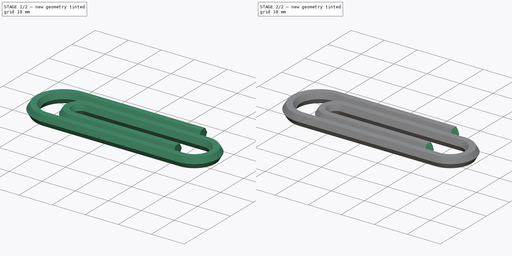
[diagram: build sequence overview — one tinted view per stage of 2, left to right]
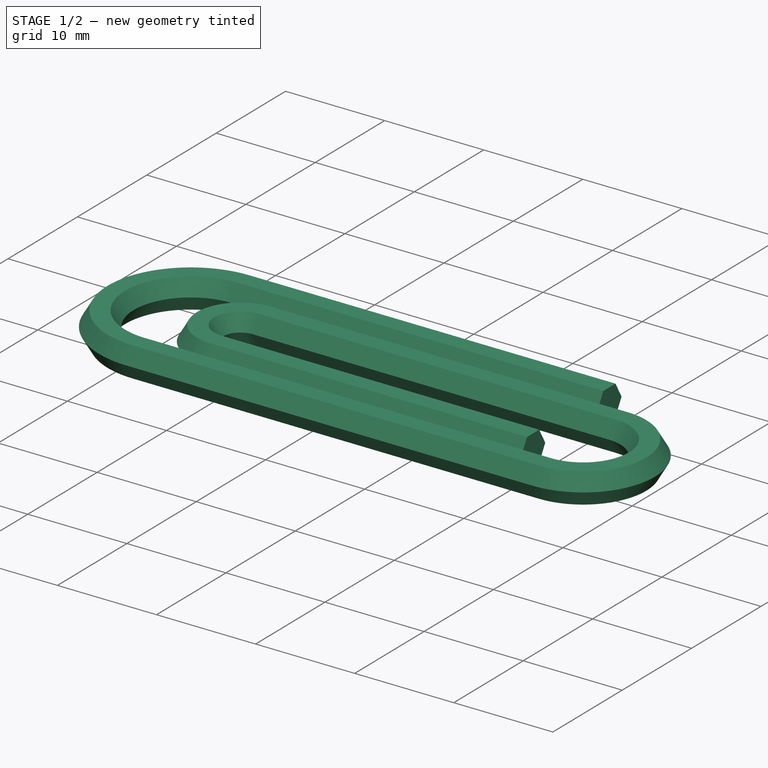
[diagram: stage 1 of 2 — iso view after this stage's code; geometry added in this stage tinted green]
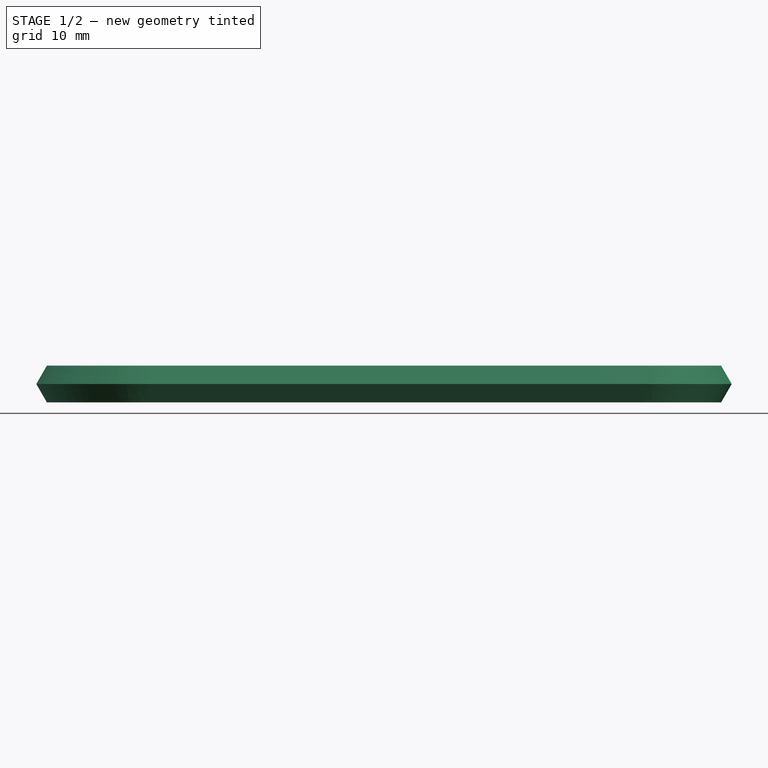
[diagram: stage 1 of 2 — front view after this stage's code; geometry added in this stage tinted green]
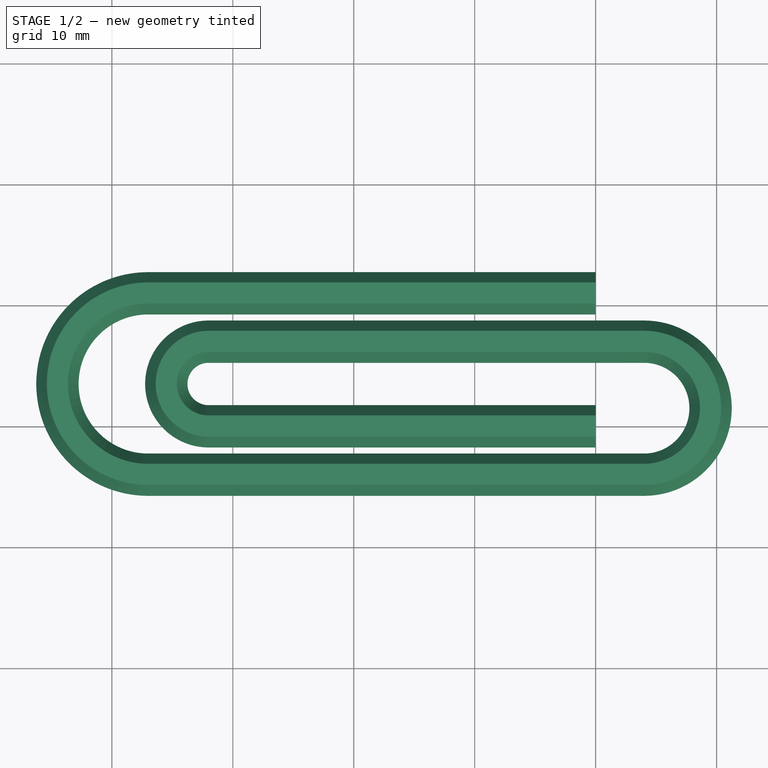
[diagram: stage 1 of 2 — top view after this stage's code; geometry added in this stage tinted green]
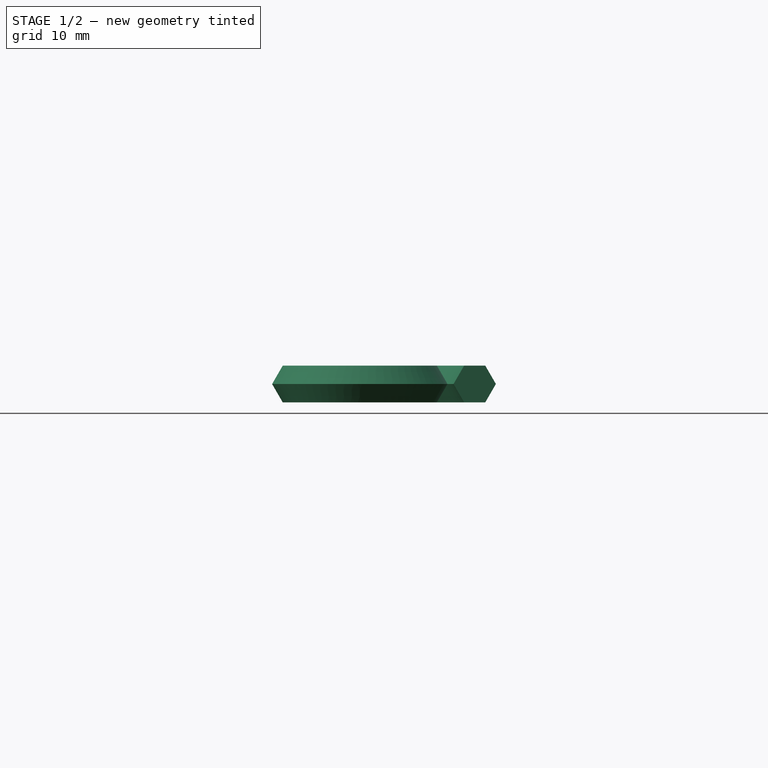
[diagram: stage 1 of 2 — right view after this stage's code; geometry added in this stage tinted green]
FCSTD DOCUMENT  (FreeCAD 0.15R4671 (Git))
Label: paper_clip
License: All rights reserved
LicenseURL: http://en.wikipedia.org/wiki/All_rights_reserved
objects: Sketcher::SketchObject×2, Part::Sweep×1, PartDesign::Chamfer×1
note: 4 computed .brp shape members not serialized (recipe doc carries the construction recipe); baked Part::Feature solids carry a one-line shape summary decoded from their .brp

FEATURE [Sketcher::SketchObject] Sketch
  sketch-geometry (8):
    g0: LineSegment StartX=0 StartY=0 StartZ=0 EndX=-32 EndY=0 EndZ=0
    g1: ArcOfCircle CenterX=-32 CenterY=3.5 CenterZ=0 NormalX=0 NormalY=0 NormalZ=1 Radius=3.5 StartAngle=1.5708 EndAngle=4.71239
    g2: LineSegment StartX=-32 StartY=7 StartZ=0 EndX=4 EndY=7 EndZ=0
    g3: ArcOfCircle CenterX=4 CenterY=1.5 CenterZ=0 NormalX=0 NormalY=0 NormalZ=1 Radius=5.5 StartAngle=4.71239 EndAngle=7.85398
    g4: LineSegment StartX=4 StartY=-4 StartZ=0 EndX=-37 EndY=-4 EndZ=0
    g5: ArcOfCircle CenterX=-37 CenterY=3.5 CenterZ=0 NormalX=0 NormalY=0 NormalZ=1 Radius=7.5 StartAngle=1.5708 EndAngle=4.71239
    g6: LineSegment StartX=-37 StartY=11 StartZ=0 EndX=0 EndY=11 EndZ=0
    g7: LineSegment [constr] StartX=0 StartY=11 StartZ=0 EndX=0 EndY=0 EndZ=0
  constraints (20):
    c: Horizontal(g0)
    c: Tangent(g0,g1) = 1.5708
    c: Tangent(g1,g2) = 1.5708
    c: Tangent(g2,g3) = 1.5708
    c: Tangent(g3,g4) = 1.5708
    c: Tangent(g4,g5) = 1.5708
    c: Tangent(g5,g6) = 1.5708
    c: Parallel(g0,g2)
    c: Parallel(g4,g6)
    c: Parallel(g6,g0)
    c: Coincident(g0,g-1)
    c: Distance(g0) = 32
    c: Distance(g2) = 36
    c: Radius(g1) = 3.5
    c: Radius(g3) = 5.5
    c: Radius(g5) = 7.5
    c: Distance(g4) = 41
    c: Coincident(g7,g6)
    c: Coincident(g7,g-1)
    c: Vertical(g7)
FEATURE [Sketcher::SketchObject] Sketch001
  Placement = pos=(0,0,0) rot=(0.57735,0.57735,0.57735;2.0944rad)
  sketch-geometry (7):
    g0: LineSegment StartX=0.875 StartY=-1.51554 StartZ=0 EndX=1.75 EndY=1e-12 EndZ=0
    g1: LineSegment StartX=1.75 StartY=1e-12 StartZ=0 EndX=0.875 EndY=1.51554 EndZ=0
    g2: LineSegment StartX=0.875 StartY=1.51554 StartZ=0 EndX=-0.875 EndY=1.51554 EndZ=0
    g3: LineSegment StartX=-0.875 StartY=1.51554 StartZ=0 EndX=-1.75 EndY=3e-12 EndZ=0
    g4: LineSegment StartX=-1.75 StartY=3e-12 StartZ=0 EndX=-0.875 EndY=-1.51554 EndZ=0
    g5: LineSegment StartX=-0.875 StartY=-1.51554 StartZ=0 EndX=0.875 EndY=-1.51554 EndZ=0
    g6: Circle [constr] CenterX=0 CenterY=0 CenterZ=0 NormalX=0 NormalY=0 NormalZ=1 Radius=1.75
  constraints (17):
    c: Coincident(g0,g1)
    c: Coincident(g1,g2)
    c: Coincident(g2,g3)
    c: Coincident(g3,g4)
    c: Coincident(g4,g5)
    c: Coincident(g5,g0)
    c: Equal(g0, g1-g5) x5
    c: PointOnObject(g0,g6)
    c: PointOnObject(g1,g6)
    c: PointOnObject(g2,g6)
    c: PointOnObject(g3,g6)
    c: PointOnObject(g4,g6)
    c: PointOnObject(g5,g6)
    c: Coincident(g3,g-1)
    c: Horizontal(g5)
    c: Radius(g6) = 1.75
    c: Coincident(g6,g-1)
FEATURE [Part::Sweep] Sweep
  Frenet = false
  Sections = -> [Sketch001]
  Solid = true
  Spine = -> Sketch [Edge2,Edge1,Edge3,Edge4,Edge5,Edge6,Edge7]
  Transition = 1
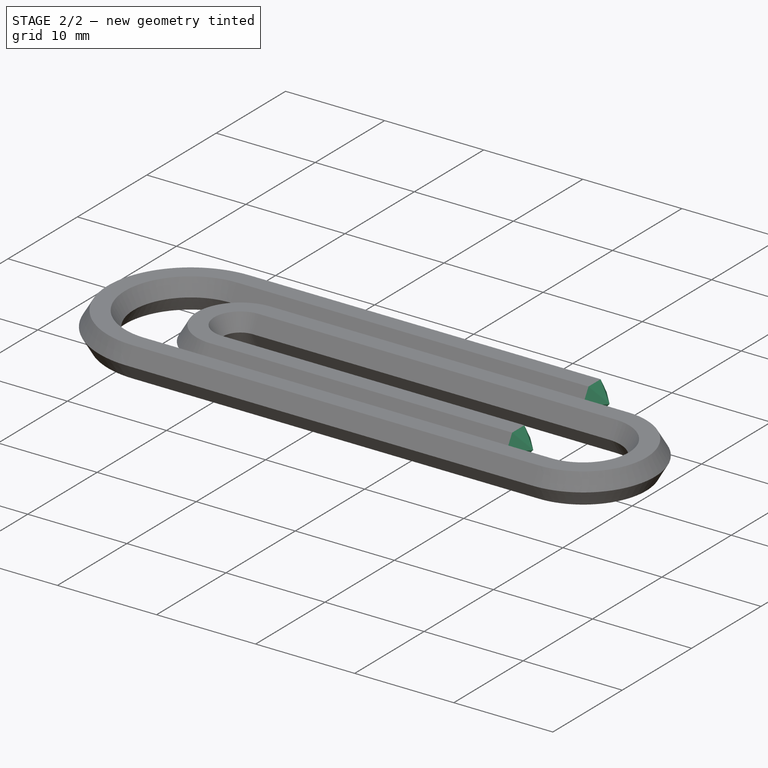
[diagram: stage 2 of 2 — iso view after this stage's code; geometry added in this stage tinted green]
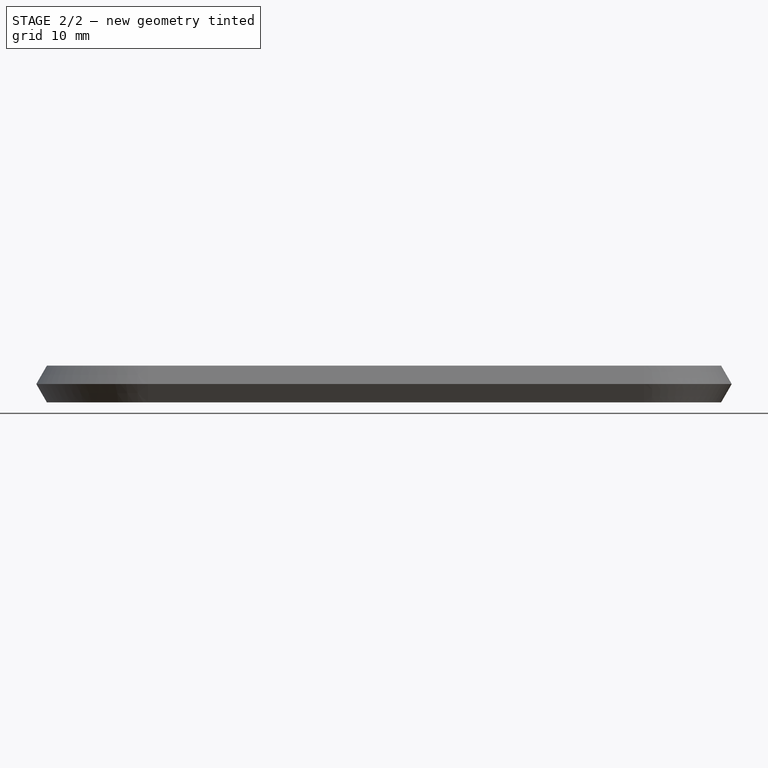
[diagram: stage 2 of 2 — front view after this stage's code; geometry added in this stage tinted green]
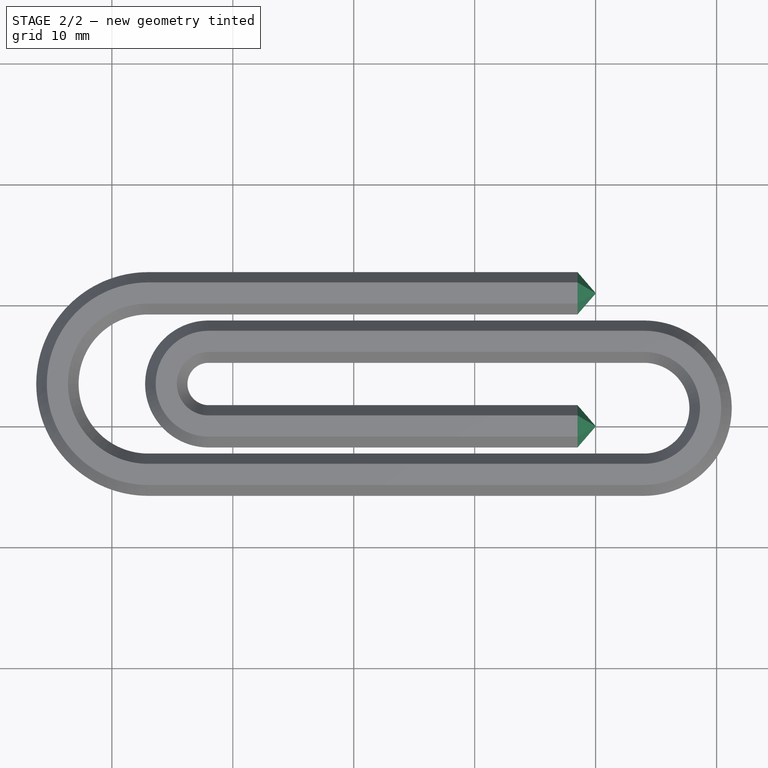
[diagram: stage 2 of 2 — top view after this stage's code; geometry added in this stage tinted green]
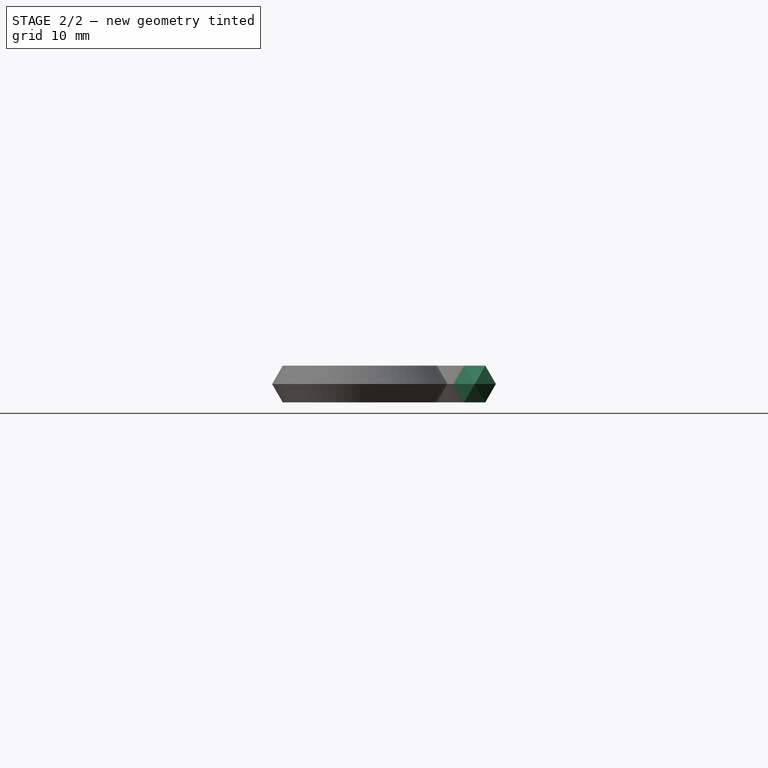
[diagram: stage 2 of 2 — right view after this stage's code; geometry added in this stage tinted green]
FEATURE [PartDesign::Chamfer] Chamfer
  Base = -> Sweep [Edge2,Edge17,Edge14,Edge11,Edge8,Edge5,Edge83,Edge81,Edge90,Edge89,Edge87,Edge85]
  Size = 1.5
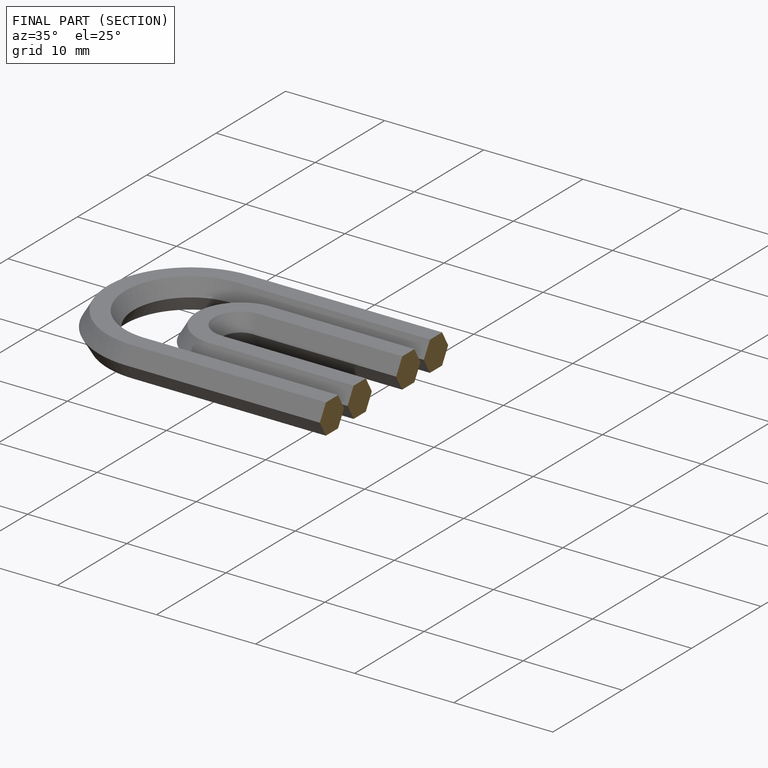
[diagram: finished part — half-section view (interior)]
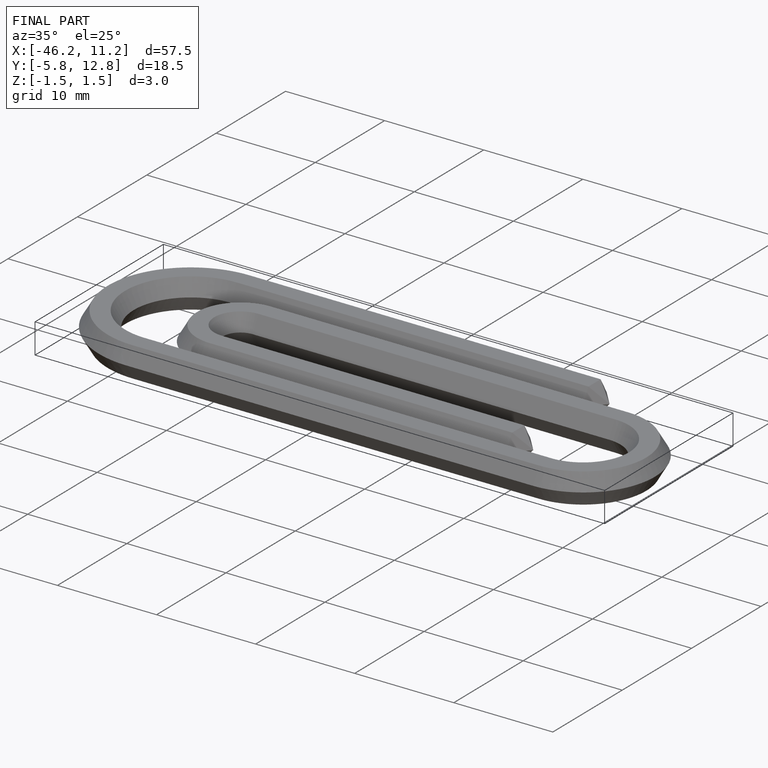
[diagram: finished part — iso view with bounding-box wireframe]
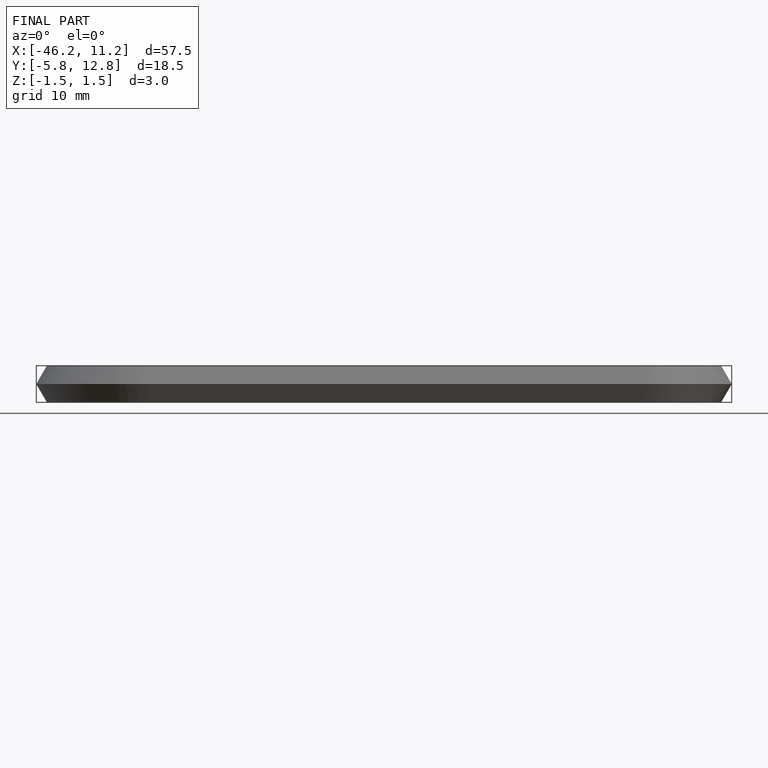
[diagram: finished part — front view with bounding-box wireframe]
